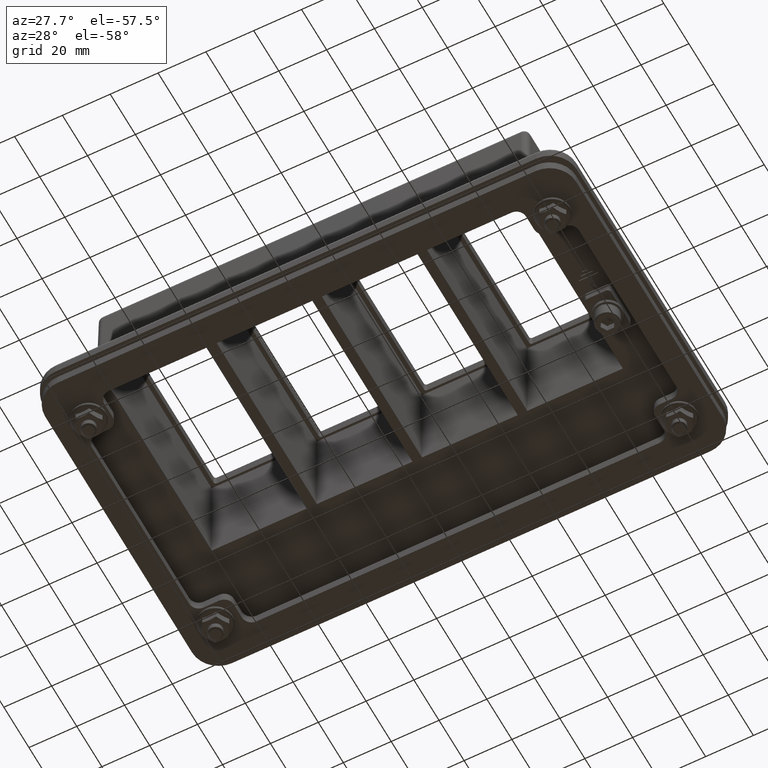
[diagram: clean part render]
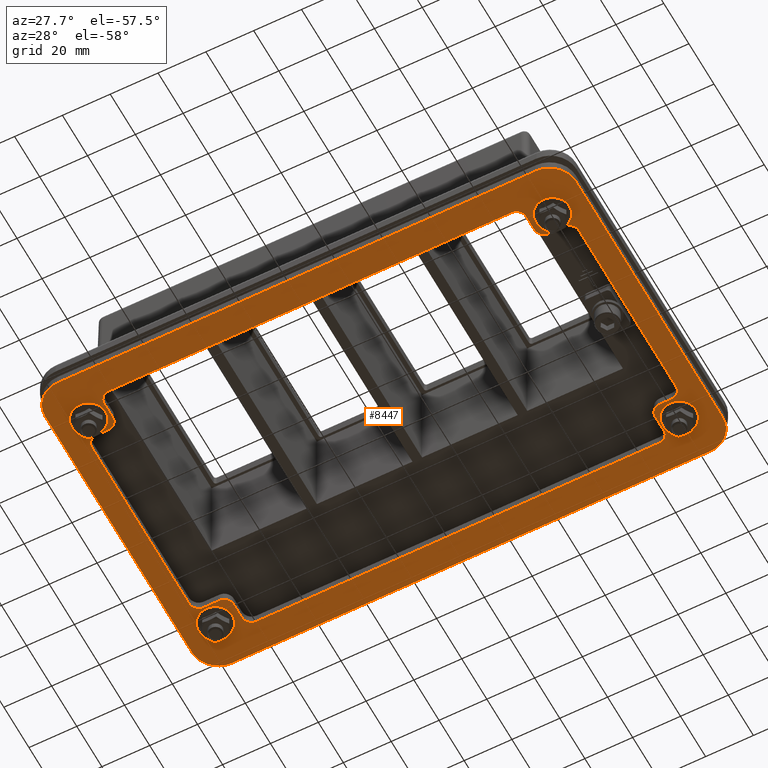
[diagram: same view with one face highlighted and labeled with its STEP entity id]
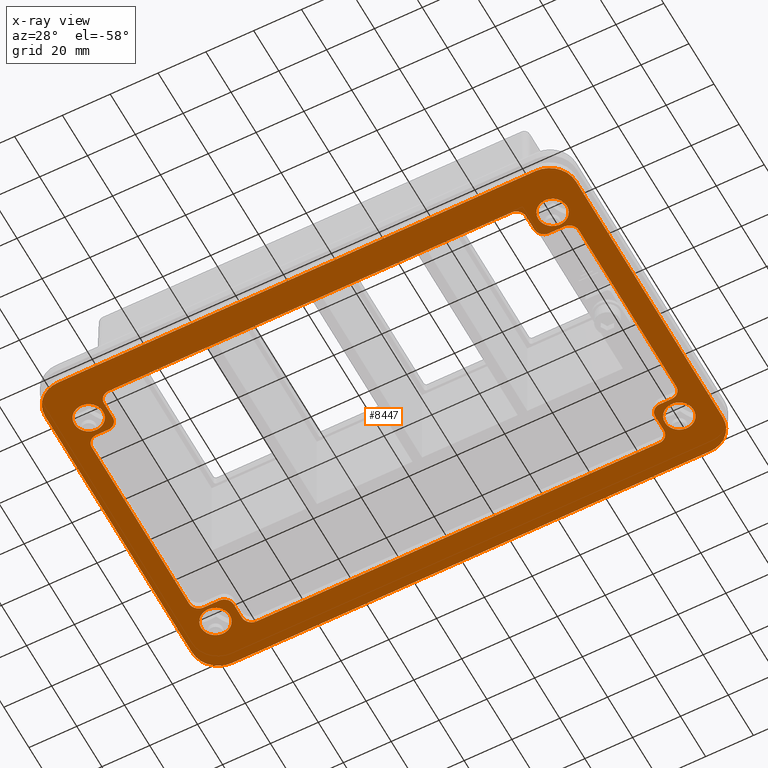
[diagram: x-ray of the same camera — body ghosted, the highlighted face saturated]
A machine part, auxiliary view. The second image highlights one B-rep face of the part: STEP entity #8447.
The next image is the same camera in x-ray: the body ghosted, the highlighted face saturated — about 0% of this face is hidden behind the body in this view.
In plain terms, the highlighted planar face has unit normal (-0, -0, 1).
Its self-contained STEP definition (entity closure, byte-faithful):
#328=LINE('',#12056,#1065);
#329=LINE('',#12060,#1066);
#330=LINE('',#12064,#1067);
#331=LINE('',#12068,#1068);
#332=LINE('',#12076,#1069);
#333=LINE('',#12080,#1070);
#334=LINE('',#12084,#1071);
#335=LINE('',#12088,#1072);
#336=LINE('',#12092,#1073);
#337=LINE('',#12096,#1074);
#338=LINE('',#12100,#1075);
#339=LINE('',#12104,#1076);
#340=LINE('',#12108,#1077);
#341=LINE('',#12112,#1078);
#342=LINE('',#12116,#1079);
#343=LINE('',#12120,#1080);
#1065=VECTOR('',#9765,10.);
#1066=VECTOR('',#9768,10.);
#1067=VECTOR('',#9771,10.);
#1068=VECTOR('',#9774,10.);
#1069=VECTOR('',#9781,10.);
#1070=VECTOR('',#9784,10.);
#1071=VECTOR('',#9787,10.);
#1072=VECTOR('',#9790,10.);
#1073=VECTOR('',#9793,10.);
#1074=VECTOR('',#9796,10.);
#1075=VECTOR('',#9799,10.);
#1076=VECTOR('',#9802,10.);
#1077=VECTOR('',#9805,10.);
#1078=VECTOR('',#9808,10.);
#1079=VECTOR('',#9811,10.);
#1080=VECTOR('',#9814,10.);
#1908=FACE_BOUND('',#2475,.T.);
#1909=FACE_BOUND('',#2476,.T.);
#1910=FACE_BOUND('',#2477,.T.);
#1911=FACE_BOUND('',#2478,.T.);
#1912=FACE_BOUND('',#2479,.T.);
#1986=FACE_OUTER_BOUND('',#2474,.T.);
#2474=EDGE_LOOP('',(#5340,#5341,#5342,#5343,#5344,#5345,#5346,#5347));
#2475=EDGE_LOOP('',(#5348));
#2476=EDGE_LOOP('',(#5349));
#2477=EDGE_LOOP('',(#5350,#5351,#5352,#5353,#5354,#5355,#5356,#5357,#5358,
#5359,#5360,#5361,#5362,#5363,#5364,#5365,#5366,#5367,#5368,#5369,#5370,
#5371,#5372,#5373));
#2478=EDGE_LOOP('',(#5374));
#2479=EDGE_LOOP('',(#5375));
#3016=CIRCLE('',#8966,6.);
#3018=CIRCLE('',#8971,11.);
#3019=CIRCLE('',#8972,11.);
#3020=CIRCLE('',#8973,11.);
#3021=CIRCLE('',#8974,11.);
#3022=CIRCLE('',#8975,6.);
#3023=CIRCLE('',#8976,6.);
#3024=CIRCLE('',#8977,4.);
#3025=CIRCLE('',#8978,4.);
#3026=CIRCLE('',#8979,4.);
#3027=CIRCLE('',#8980,4.);
#3028=CIRCLE('',#8981,4.);
#3029=CIRCLE('',#8982,4.);
#3030=CIRCLE('',#8983,4.);
#3031=CIRCLE('',#8984,4.);
#3032=CIRCLE('',#8985,4.);
#3033=CIRCLE('',#8986,4.);
#3034=CIRCLE('',#8987,4.);
#3035=CIRCLE('',#8988,4.);
#3036=CIRCLE('',#8989,6.);
#3306=VERTEX_POINT('',#12044);
#3308=VERTEX_POINT('',#12054);
#3309=VERTEX_POINT('',#12055);
#3310=VERTEX_POINT('',#12057);
#3311=VERTEX_POINT('',#12059);
#3312=VERTEX_POINT('',#12061);
#3313=VERTEX_POINT('',#12063);
#3314=VERTEX_POINT('',#12065);
#3315=VERTEX_POINT('',#12067);
#3316=VERTEX_POINT('',#12070);
#3317=VERTEX_POINT('',#12072);
#3318=VERTEX_POINT('',#12074);
#3319=VERTEX_POINT('',#12075);
#3320=VERTEX_POINT('',#12077);
#3321=VERTEX_POINT('',#12079);
#3322=VERTEX_POINT('',#12081);
#3323=VERTEX_POINT('',#12083);
#3324=VERTEX_POINT('',#12085);
#3325=VERTEX_POINT('',#12087);
#3326=VERTEX_POINT('',#12089);
#3327=VERTEX_POINT('',#12091);
#3328=VERTEX_POINT('',#12093);
#3329=VERTEX_POINT('',#12095);
#3330=VERTEX_POINT('',#12097);
#3331=VERTEX_POINT('',#12099);
#3332=VERTEX_POINT('',#12101);
#3333=VERTEX_POINT('',#12103);
#3334=VERTEX_POINT('',#12105);
#3335=VERTEX_POINT('',#12107);
#3336=VERTEX_POINT('',#12109);
#3337=VERTEX_POINT('',#12111);
#3338=VERTEX_POINT('',#12113);
#3339=VERTEX_POINT('',#12115);
#3340=VERTEX_POINT('',#12117);
#3341=VERTEX_POINT('',#12119);
#3342=VERTEX_POINT('',#12122);
#4091=EDGE_CURVE('',#3306,#3306,#3016,.T.);
#4095=EDGE_CURVE('',#3308,#3309,#328,.T.);
#4096=EDGE_CURVE('',#3310,#3308,#3018,.T.);
#4097=EDGE_CURVE('',#3311,#3310,#329,.T.);
#4098=EDGE_CURVE('',#3312,#3311,#3019,.T.);
#4099=EDGE_CURVE('',#3313,#3312,#330,.T.);
#4100=EDGE_CURVE('',#3314,#3313,#3020,.T.);
#4101=EDGE_CURVE('',#3315,#3314,#331,.T.);
#4102=EDGE_CURVE('',#3309,#3315,#3021,.T.);
#4103=EDGE_CURVE('',#3316,#3316,#3022,.T.);
#4104=EDGE_CURVE('',#3317,#3317,#3023,.T.);
#4105=EDGE_CURVE('',#3318,#3319,#332,.T.);
#4106=EDGE_CURVE('',#3320,#3318,#3024,.T.);
#4107=EDGE_CURVE('',#3321,#3320,#333,.T.);
#4108=EDGE_CURVE('',#3322,#3321,#3025,.T.);
#4109=EDGE_CURVE('',#3323,#3322,#334,.T.);
#4110=EDGE_CURVE('',#3324,#3323,#3026,.T.);
#4111=EDGE_CURVE('',#3325,#3324,#335,.T.);
#4112=EDGE_CURVE('',#3326,#3325,#3027,.T.);
#4113=EDGE_CURVE('',#3327,#3326,#336,.T.);
#4114=EDGE_CURVE('',#3328,#3327,#3028,.T.);
#4115=EDGE_CURVE('',#3329,#3328,#337,.T.);
#4116=EDGE_CURVE('',#3330,#3329,#3029,.T.);
#4117=EDGE_CURVE('',#3331,#3330,#338,.T.);
#4118=EDGE_CURVE('',#3332,#3331,#3030,.T.);
#4119=EDGE_CURVE('',#3333,#3332,#339,.T.);
#4120=EDGE_CURVE('',#3334,#3333,#3031,.T.);
#4121=EDGE_CURVE('',#3335,#3334,#340,.T.);
#4122=EDGE_CURVE('',#3336,#3335,#3032,.T.);
#4123=EDGE_CURVE('',#3337,#3336,#341,.T.);
#4124=EDGE_CURVE('',#3338,#3337,#3033,.T.);
#4125=EDGE_CURVE('',#3339,#3338,#342,.T.);
#4126=EDGE_CURVE('',#3340,#3339,#3034,.T.);
#4127=EDGE_CURVE('',#3341,#3340,#343,.T.);
#4128=EDGE_CURVE('',#3319,#3341,#3035,.T.);
#4129=EDGE_CURVE('',#3342,#3342,#3036,.T.);
#5340=ORIENTED_EDGE('',*,*,#4095,.F.);
#5341=ORIENTED_EDGE('',*,*,#4096,.F.);
#5342=ORIENTED_EDGE('',*,*,#4097,.F.);
#5343=ORIENTED_EDGE('',*,*,#4098,.F.);
#5344=ORIENTED_EDGE('',*,*,#4099,.F.);
#5345=ORIENTED_EDGE('',*,*,#4100,.F.);
#5346=ORIENTED_EDGE('',*,*,#4101,.F.);
#5347=ORIENTED_EDGE('',*,*,#4102,.F.);
#5348=ORIENTED_EDGE('',*,*,#4103,.F.);
#5349=ORIENTED_EDGE('',*,*,#4104,.F.);
#5350=ORIENTED_EDGE('',*,*,#4105,.F.);
#5351=ORIENTED_EDGE('',*,*,#4106,.F.);
#5352=ORIENTED_EDGE('',*,*,#4107,.F.);
#5353=ORIENTED_EDGE('',*,*,#4108,.F.);
#5354=ORIENTED_EDGE('',*,*,#4109,.F.);
#5355=ORIENTED_EDGE('',*,*,#4110,.F.);
#5356=ORIENTED_EDGE('',*,*,#4111,.F.);
#5357=ORIENTED_EDGE('',*,*,#4112,.F.);
#5358=ORIENTED_EDGE('',*,*,#4113,.F.);
#5359=ORIENTED_EDGE('',*,*,#4114,.F.);
#5360=ORIENTED_EDGE('',*,*,#4115,.F.);
#5361=ORIENTED_EDGE('',*,*,#4116,.F.);
#5362=ORIENTED_EDGE('',*,*,#4117,.F.);
#5363=ORIENTED_EDGE('',*,*,#4118,.F.);
#5364=ORIENTED_EDGE('',*,*,#4119,.F.);
#5365=ORIENTED_EDGE('',*,*,#4120,.F.);
#5366=ORIENTED_EDGE('',*,*,#4121,.F.);
#5367=ORIENTED_EDGE('',*,*,#4122,.F.);
#5368=ORIENTED_EDGE('',*,*,#4123,.F.);
#5369=ORIENTED_EDGE('',*,*,#4124,.F.);
#5370=ORIENTED_EDGE('',*,*,#4125,.F.);
#5371=ORIENTED_EDGE('',*,*,#4126,.F.);
#5372=ORIENTED_EDGE('',*,*,#4127,.F.);
#5373=ORIENTED_EDGE('',*,*,#4128,.F.);
#5374=ORIENTED_EDGE('',*,*,#4129,.F.);
#5375=ORIENTED_EDGE('',*,*,#4091,.F.);
#7690=PLANE('',#8970);
#8447=ADVANCED_FACE('',(#1986,#1908,#1909,#1910,#1911,#1912),#7690,.F.);
#8966=AXIS2_PLACEMENT_3D('',#12046,#9753,#9754);
#8970=AXIS2_PLACEMENT_3D('',#12053,#9763,#9764);
#8971=AXIS2_PLACEMENT_3D('',#12058,#9766,#9767);
#8972=AXIS2_PLACEMENT_3D('',#12062,#9769,#9770);
#8973=AXIS2_PLACEMENT_3D('',#12066,#9772,#9773);
#8974=AXIS2_PLACEMENT_3D('',#12069,#9775,#9776);
#8975=AXIS2_PLACEMENT_3D('',#12071,#9777,#9778);
#8976=AXIS2_PLACEMENT_3D('',#12073,#9779,#9780);
#8977=AXIS2_PLACEMENT_3D('',#12078,#9782,#9783);
#8978=AXIS2_PLACEMENT_3D('',#12082,#9785,#9786);
#8979=AXIS2_PLACEMENT_3D('',#12086,#9788,#9789);
#8980=AXIS2_PLACEMENT_3D('',#12090,#9791,#9792);
#8981=AXIS2_PLACEMENT_3D('',#12094,#9794,#9795);
#8982=AXIS2_PLACEMENT_3D('',#12098,#9797,#9798);
#8983=AXIS2_PLACEMENT_3D('',#12102,#9800,#9801);
#8984=AXIS2_PLACEMENT_3D('',#12106,#9803,#9804);
#8985=AXIS2_PLACEMENT_3D('',#12110,#9806,#9807);
#8986=AXIS2_PLACEMENT_3D('',#12114,#9809,#9810);
#8987=AXIS2_PLACEMENT_3D('',#12118,#9812,#9813);
#8988=AXIS2_PLACEMENT_3D('',#12121,#9815,#9816);
#8989=AXIS2_PLACEMENT_3D('',#12123,#9817,#9818);
#9753=DIRECTION('center_axis',(3.72492550599099E-17,9.47097302799997E-32,
-1.));
#9754=DIRECTION('ref_axis',(-1.,0.,-3.72492550599099E-17));
#9763=DIRECTION('center_axis',(-3.72492550599099E-17,-8.77347942792455E-32,
1.));
#9764=DIRECTION('ref_axis',(1.,-1.31808141013052E-16,3.72492550599099E-17));
#9765=DIRECTION('',(-9.34346109831717E-18,-1.,-8.80828312448391E-32));
#9766=DIRECTION('center_axis',(-3.72492550599099E-17,-8.77347942792455E-32,
1.));
#9767=DIRECTION('ref_axis',(-0.707106781186547,0.707106781186548,-2.63392008470096E-17));
#9768=DIRECTION('',(-1.,1.31808141013052E-16,-3.72492550599099E-17));
#9769=DIRECTION('center_axis',(-3.72492550599099E-17,-8.77347942792455E-32,
1.));
#9770=DIRECTION('ref_axis',(0.707106781186548,0.707106781186547,2.63392008470097E-17));
#9771=DIRECTION('',(1.31808141013052E-16,1.,9.26445493428133E-32));
#9772=DIRECTION('center_axis',(-3.72492550599099E-17,-8.77347942792455E-32,
1.));
#9773=DIRECTION('ref_axis',(0.707106781186548,-0.707106781186548,2.63392008470096E-17));
#9774=DIRECTION('',(1.,-9.34346109831714E-18,3.72492550599099E-17));
#9775=DIRECTION('center_axis',(-3.72492550599099E-17,-8.77347942792455E-32,
1.));
#9776=DIRECTION('ref_axis',(-0.707106781186548,-0.707106781186548,-2.63392008470097E-17));
#9777=DIRECTION('center_axis',(3.72492550599099E-17,9.51575302923262E-32,
-1.));
#9778=DIRECTION('ref_axis',(-1.,0.,-3.72492550599099E-17));
#9779=DIRECTION('center_axis',(3.72492550599099E-17,8.96396984011442E-32,
-1.));
#9780=DIRECTION('ref_axis',(-1.,0.,-3.72492550599099E-17));
#9781=DIRECTION('',(1.31808141013052E-16,1.,9.26445493428133E-32));
#9782=DIRECTION('center_axis',(-3.72492550599099E-17,-8.77347942792455E-32,
1.));
#9783=DIRECTION('ref_axis',(0.707106781186546,-0.707106781186549,2.63392008470095E-17));
#9784=DIRECTION('',(1.,6.03193380074183E-16,3.72492550599099E-17));
#9785=DIRECTION('center_axis',(3.72492550599099E-17,8.77347942792455E-32,
-1.));
#9786=DIRECTION('ref_axis',(-0.707106781186551,0.707106781186544,-2.63392008470097E-17));
#9787=DIRECTION('',(-6.1393964044563E-16,1.,6.48660000208968E-32));
#9788=DIRECTION('center_axis',(3.72492550599099E-17,8.77347942792455E-32,
-1.));
#9789=DIRECTION('ref_axis',(-0.707106781186546,-0.707106781186549,-2.63392008470096E-17));
#9790=DIRECTION('',(-1.,9.34346109831714E-18,-3.72492550599099E-17));
#9791=DIRECTION('center_axis',(-3.72492550599099E-17,-8.77347942792455E-32,
1.));
#9792=DIRECTION('ref_axis',(0.707106781186546,0.707106781186549,2.63392008470096E-17));
#9793=DIRECTION('',(9.34346109831717E-18,1.,8.80828312448391E-32));
#9794=DIRECTION('center_axis',(3.72492550599099E-17,8.77347942792455E-32,
-1.));
#9795=DIRECTION('ref_axis',(-0.707106781186549,-0.707106781186546,-2.63392008470097E-17));
#9796=DIRECTION('',(-1.,-5.94517220850776E-16,-3.72492550599099E-17));
#9797=DIRECTION('center_axis',(3.72492550599099E-17,8.77347942792455E-32,
-1.));
#9798=DIRECTION('ref_axis',(0.707106781186546,-0.707106781186549,2.63392008470095E-17));
#9799=DIRECTION('',(-1.31808141013052E-16,-1.,-9.26445493428133E-32));
#9800=DIRECTION('center_axis',(-3.72492550599099E-17,-8.77347942792455E-32,
1.));
#9801=DIRECTION('ref_axis',(-0.707106781186546,0.707106781186549,-2.63392008470095E-17));
#9802=DIRECTION('',(-1.,-4.80728700159447E-16,-3.72492550599099E-17));
#9803=DIRECTION('center_axis',(3.72492550599099E-17,8.77347942792455E-32,
-1.));
#9804=DIRECTION('ref_axis',(0.707106781186551,-0.707106781186544,2.63392008470097E-17));
#9805=DIRECTION('',(4.91474960530895E-16,-1.,-6.9427718118871E-32));
#9806=DIRECTION('center_axis',(3.72492550599099E-17,8.77347942792455E-32,
-1.));
#9807=DIRECTION('ref_axis',(0.707106781186546,0.707106781186549,2.63392008470096E-17));
#9808=DIRECTION('',(1.,-1.31808141013052E-16,3.72492550599099E-17));
#9809=DIRECTION('center_axis',(-3.72492550599099E-17,-8.77347942792455E-32,
1.));
#9810=DIRECTION('ref_axis',(-0.707106781186546,-0.707106781186549,-2.63392008470096E-17));
#9811=DIRECTION('',(-1.31808141013052E-16,-1.,-9.26445493428133E-32));
#9812=DIRECTION('center_axis',(3.72492550599099E-17,8.77347942792455E-32,
-1.));
#9813=DIRECTION('ref_axis',(0.707106781186549,0.707106781186546,2.63392008470097E-17));
#9814=DIRECTION('',(1.,4.7205254093604E-16,3.72492550599099E-17));
#9815=DIRECTION('center_axis',(3.72492550599099E-17,8.77347942792455E-32,
-1.));
#9816=DIRECTION('ref_axis',(-0.707106781186546,0.707106781186549,-2.63392008470095E-17));
#9817=DIRECTION('center_axis',(3.72492550599099E-17,1.39227544951005E-31,
-1.));
#9818=DIRECTION('ref_axis',(-1.,0.,-3.72492550599099E-17));
#12044=CARTESIAN_POINT('',(-91.8038475772934,-53.5,-50.4999999999999));
#12046=CARTESIAN_POINT('Origin',(-97.,-50.5,-50.4999999999999));
#12053=CARTESIAN_POINT('Origin',(2.49272993775667E-13,9.62500000000012,
-50.4999999999999));
#12054=CARTESIAN_POINT('',(-111.,58.5000000000002,-50.4999999999999));
#12055=CARTESIAN_POINT('',(-111.,-58.4999999999999,-50.4999999999999));
#12056=CARTESIAN_POINT('',(-111.,50.2500000000001,-50.4999999999999));
#12057=CARTESIAN_POINT('',(-99.9999999999997,69.5000000000001,-50.4999999999999));
#12058=CARTESIAN_POINT('Origin',(-99.9999999999997,58.5000000000001,-50.4999999999999));
#12059=CARTESIAN_POINT('',(100.,69.5000000000001,-50.4999999999999));
#12060=CARTESIAN_POINT('',(111.,69.5000000000001,-50.4999999999999));
#12061=CARTESIAN_POINT('',(111.,58.5000000000001,-50.4999999999999));
#12062=CARTESIAN_POINT('Origin',(100.,58.5000000000001,-50.4999999999999));
#12063=CARTESIAN_POINT('',(111.,-58.4999999999999,-50.4999999999999));
#12064=CARTESIAN_POINT('',(111.,-50.2499999999999,-50.4999999999999));
#12065=CARTESIAN_POINT('',(100.,-69.4999999999999,-50.4999999999999));
#12066=CARTESIAN_POINT('Origin',(100.,-58.4999999999999,-50.4999999999999));
#12067=CARTESIAN_POINT('',(-99.9999999999997,-69.4999999999999,-50.4999999999999));
#12068=CARTESIAN_POINT('',(-111.,-69.4999999999999,-50.4999999999999));
#12069=CARTESIAN_POINT('Origin',(-99.9999999999997,-58.4999999999999,-50.4999999999999));
#12070=CARTESIAN_POINT('',(102.196152422707,-53.5,-50.4999999999999));
#12071=CARTESIAN_POINT('Origin',(97.0000000000006,-50.5,-50.4999999999999));
#12072=CARTESIAN_POINT('',(-91.8038475772935,47.5000000000003,-50.4999999999999));
#12073=CARTESIAN_POINT('Origin',(-97.0000000000001,50.5000000000003,-50.4999999999999));
#12074=CARTESIAN_POINT('',(-87.4999999999997,47.0000000000001,-50.4999999999999));
#12075=CARTESIAN_POINT('',(-87.4999999999997,53.5,-50.4999999999999));
#12076=CARTESIAN_POINT('',(-87.4999999999997,50.7500000000001,-50.4999999999999));
#12077=CARTESIAN_POINT('',(-91.4999999999998,43.0000000000001,-50.4999999999999));
#12078=CARTESIAN_POINT('Origin',(-91.4999999999998,47.0000000000001,-50.4999999999999));
#12079=CARTESIAN_POINT('',(-97.9999999999998,43.0000000000001,-50.4999999999999));
#12080=CARTESIAN_POINT('',(-102.,43.0000000000001,-50.4999999999999));
#12081=CARTESIAN_POINT('',(-102.,39.0000000000001,-50.4999999999999));
#12082=CARTESIAN_POINT('Origin',(-97.9999999999998,39.0000000000001,-50.4999999999999));
#12083=CARTESIAN_POINT('',(-102.,-38.4999999999999,-50.4999999999999));
#12084=CARTESIAN_POINT('',(-102.,-42.4999999999999,-50.4999999999999));
#12085=CARTESIAN_POINT('',(-97.9999999999998,-42.4999999999999,-50.4999999999999));
#12086=CARTESIAN_POINT('Origin',(-97.9999999999998,-38.4999999999999,-50.4999999999999));
#12087=CARTESIAN_POINT('',(-92.9999999999998,-42.4999999999999,-50.4999999999999));
#12088=CARTESIAN_POINT('',(-88.9999999999998,-42.4999999999999,-50.4999999999999));
#12089=CARTESIAN_POINT('',(-88.9999999999998,-46.4999999999999,-50.4999999999999));
#12090=CARTESIAN_POINT('Origin',(-92.9999999999998,-46.4999999999999,-50.4999999999999));
#12091=CARTESIAN_POINT('',(-88.9999999999998,-53.4999999999999,-50.4999999999999));
#12092=CARTESIAN_POINT('',(-88.9999999999998,-57.5,-50.4999999999999));
#12093=CARTESIAN_POINT('',(-84.9999999999997,-57.5,-50.4999999999999));
#12094=CARTESIAN_POINT('Origin',(-84.9999999999997,-53.4999999999999,-50.4999999999999));
#12095=CARTESIAN_POINT('',(83.5000000000002,-57.4999999999998,-50.4999999999999));
#12096=CARTESIAN_POINT('',(87.5000000000003,-57.4999999999998,-50.4999999999999));
#12097=CARTESIAN_POINT('',(87.5000000000003,-53.4999999999998,-50.4999999999999));
#12098=CARTESIAN_POINT('Origin',(83.5000000000002,-53.4999999999998,-50.4999999999999));
#12099=CARTESIAN_POINT('',(87.5000000000003,-46.9999999999999,-50.4999999999999));
#12100=CARTESIAN_POINT('',(87.5000000000003,-42.9999999999999,-50.4999999999999));
#12101=CARTESIAN_POINT('',(91.5000000000003,-42.9999999999999,-50.4999999999999));
#12102=CARTESIAN_POINT('Origin',(91.5000000000003,-46.9999999999999,-50.4999999999999));
#12103=CARTESIAN_POINT('',(98.0000000000003,-42.9999999999999,-50.4999999999999));
#12104=CARTESIAN_POINT('',(102.,-42.9999999999999,-50.4999999999999));
#12105=CARTESIAN_POINT('',(102.,-38.9999999999999,-50.4999999999999));
#12106=CARTESIAN_POINT('Origin',(98.0000000000003,-38.9999999999999,-50.4999999999999));
#12107=CARTESIAN_POINT('',(102.,38.5000000000001,-50.4999999999999));
#12108=CARTESIAN_POINT('',(102.,42.5000000000001,-50.4999999999999));
#12109=CARTESIAN_POINT('',(98.0000000000003,42.5000000000001,-50.4999999999999));
#12110=CARTESIAN_POINT('Origin',(98.0000000000003,38.5000000000001,-50.4999999999999));
#12111=CARTESIAN_POINT('',(93.0000000000003,42.5000000000001,-50.4999999999999));
#12112=CARTESIAN_POINT('',(89.0000000000003,42.5000000000001,-50.4999999999999));
#12113=CARTESIAN_POINT('',(89.0000000000003,46.5000000000001,-50.4999999999999));
#12114=CARTESIAN_POINT('Origin',(93.0000000000003,46.5000000000001,-50.4999999999999));
#12115=CARTESIAN_POINT('',(89.0000000000003,53.5000000000001,-50.4999999999999));
#12116=CARTESIAN_POINT('',(89.0000000000003,57.5000000000002,-50.4999999999999));
#12117=CARTESIAN_POINT('',(85.0000000000003,57.5000000000002,-50.4999999999999));
#12118=CARTESIAN_POINT('Origin',(85.0000000000003,53.5000000000001,-50.4999999999999));
#12119=CARTESIAN_POINT('',(-83.4999999999997,57.5,-50.4999999999999));
#12120=CARTESIAN_POINT('',(-87.4999999999997,57.5,-50.4999999999999));
#12121=CARTESIAN_POINT('Origin',(-83.4999999999997,53.5,-50.4999999999999));
#12122=CARTESIAN_POINT('',(102.196152422707,47.5000000000003,-50.4999999999999));
#12123=CARTESIAN_POINT('Origin',(97.0000000000005,50.5000000000003,-50.4999999999999));